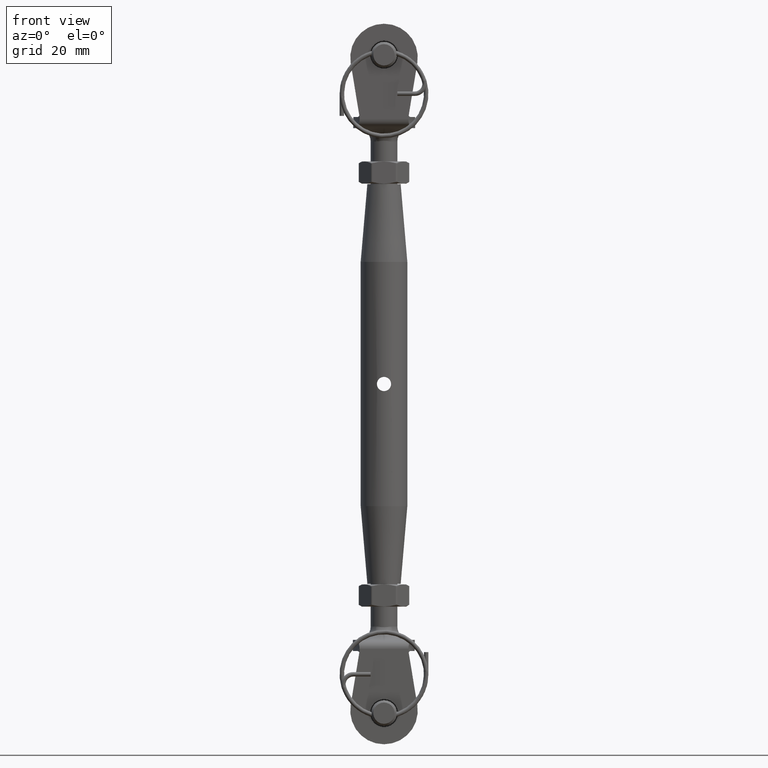
[diagram: clean part render]
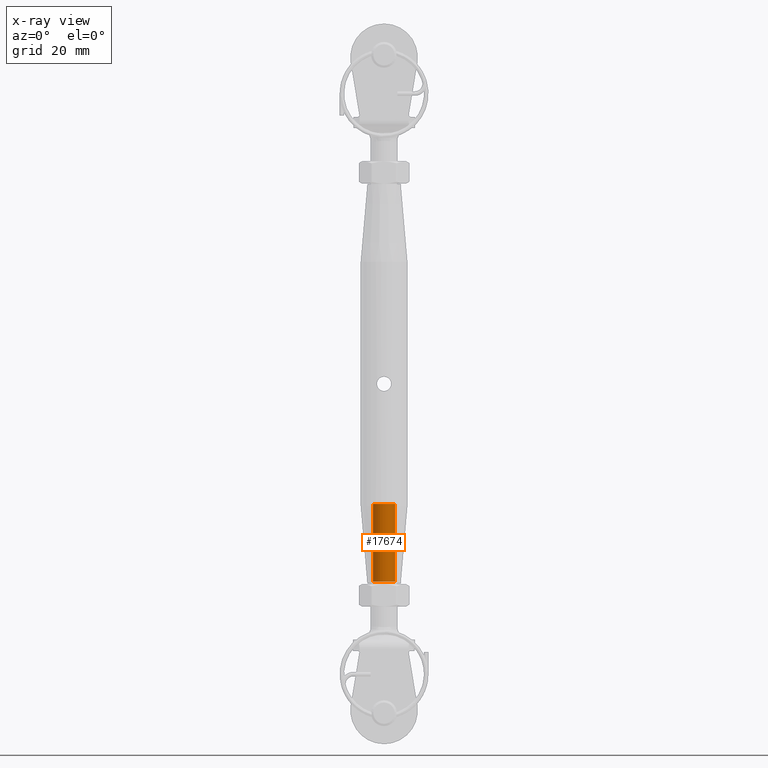
[diagram: x-ray — body ghosted, one internal face saturated and labeled with its STEP entity id]
A machine part, front view, then the same camera in x-ray: the body is ghosted and one INTERNAL B-rep face — a face not visible from any outside direction — is saturated and labeled: STEP entity #17674.
In plain terms, the highlighted cylindrical surface (edge-blend (fillet) strip) has radius 2.5 mm, axis along (-0, -0, -1).
Its self-contained STEP definition (entity closure, byte-faithful):
#393 = DIRECTION ( 'NONE',  ( -1.000000000000000000, 0.0000000000000000000, 0.0000000000000000000 ) ) ;
#972 = VECTOR ( 'NONE', #18537, 1000.000000000000000 ) ;
#1459 = VERTEX_POINT ( 'NONE', #16017 ) ;
#1471 = AXIS2_PLACEMENT_3D ( 'NONE', #9328, #13956, #16326 ) ;
#4217 = VECTOR ( 'NONE', #27627, 1000.000000000000000 ) ;
#4268 = CARTESIAN_POINT ( 'NONE',  ( 2.499999999999996400, 0.0000000000000000000, -27.00000000000000000 ) ) ;
#4757 = CARTESIAN_POINT ( 'NONE',  ( 2.499999999999996400, 3.061616997868378700E-016, -45.00000000000000000 ) ) ;
#5499 = ORIENTED_EDGE ( 'NONE', *, *, #12261, .T. ) ;
#7242 = ORIENTED_EDGE ( 'NONE', *, *, #13025, .T. ) ;
#7291 = CARTESIAN_POINT ( 'NONE',  ( -2.499999999999996400, 0.0000000000000000000, -45.00000000000000000 ) ) ;
#7318 = DIRECTION ( 'NONE',  ( -0.0000000000000000000, -0.0000000000000000000, -1.000000000000000000 ) ) ;
#7736 = CIRCLE ( 'NONE', #25270, 2.499999999999996400 ) ;
#8420 = ORIENTED_EDGE ( 'NONE', *, *, #20982, .F. ) ;
#9328 = CARTESIAN_POINT ( 'NONE',  ( 0.0000000000000000000, 0.0000000000000000000, -27.00000000000000000 ) ) ;
#9867 = DIRECTION ( 'NONE',  ( -1.000000000000000000, 0.0000000000000000000, 0.0000000000000000000 ) ) ;
#12033 = CARTESIAN_POINT ( 'NONE',  ( 2.499999999999996400, 3.367778697655220500E-016, -44.49999999999999300 ) ) ;
#12261 = EDGE_CURVE ( 'NONE', #27354, #23032, #14478, .T. ) ;
#12321 = ORIENTED_EDGE ( 'NONE', *, *, #14841, .F. ) ;
#12384 = AXIS2_PLACEMENT_3D ( 'NONE', #16582, #18863, #9867 ) ;
#13025 = EDGE_CURVE ( 'NONE', #23032, #1459, #7736, .T. ) ;
#13956 = DIRECTION ( 'NONE',  ( 0.0000000000000000000, 0.0000000000000000000, -1.000000000000000000 ) ) ;
#14478 = LINE ( 'NONE', #4757, #4217 ) ;
#14841 = EDGE_CURVE ( 'NONE', #27498, #1459, #20445, .T. ) ;
#16017 = CARTESIAN_POINT ( 'NONE',  ( -2.499999999999996400, 0.0000000000000000000, -44.49999999999999300 ) ) ;
#16326 = DIRECTION ( 'NONE',  ( 1.000000000000000000, 0.0000000000000000000, 0.0000000000000000000 ) ) ;
#16582 = CARTESIAN_POINT ( 'NONE',  ( 0.0000000000000000000, 0.0000000000000000000, -45.00000000000000000 ) ) ;
#17674 = ADVANCED_FACE ( 'NONE', ( #28901 ), #21441, .F. ) ;
#18537 = DIRECTION ( 'NONE',  ( -0.0000000000000000000, -0.0000000000000000000, -1.000000000000000000 ) ) ;
#18562 = CARTESIAN_POINT ( 'NONE',  ( 0.0000000000000000000, 0.0000000000000000000, -44.49999999999999300 ) ) ;
#18863 = DIRECTION ( 'NONE',  ( -0.0000000000000000000, -0.0000000000000000000, -1.000000000000000000 ) ) ;
#20445 = LINE ( 'NONE', #7291, #972 ) ;
#20778 = CARTESIAN_POINT ( 'NONE',  ( -2.499999999999996400, 3.827021247335476800E-016, -27.00000000000000000 ) ) ;
#20982 = EDGE_CURVE ( 'NONE', #27354, #27498, #26719, .T. ) ;
#21441 = CYLINDRICAL_SURFACE ( 'NONE', #12384, 2.499999999999996400 ) ;
#23032 = VERTEX_POINT ( 'NONE', #12033 ) ;
#25270 = AXIS2_PLACEMENT_3D ( 'NONE', #18562, #7318, #393 ) ;
#25923 = EDGE_LOOP ( 'NONE', ( #8420, #5499, #7242, #12321 ) ) ;
#26719 = CIRCLE ( 'NONE', #1471, 2.499999999999996400 ) ;
#27354 = VERTEX_POINT ( 'NONE', #4268 ) ;
#27498 = VERTEX_POINT ( 'NONE', #20778 ) ;
#27627 = DIRECTION ( 'NONE',  ( -0.0000000000000000000, -0.0000000000000000000, -1.000000000000000000 ) ) ;
#28901 = FACE_OUTER_BOUND ( 'NONE', #25923, .T. ) ;